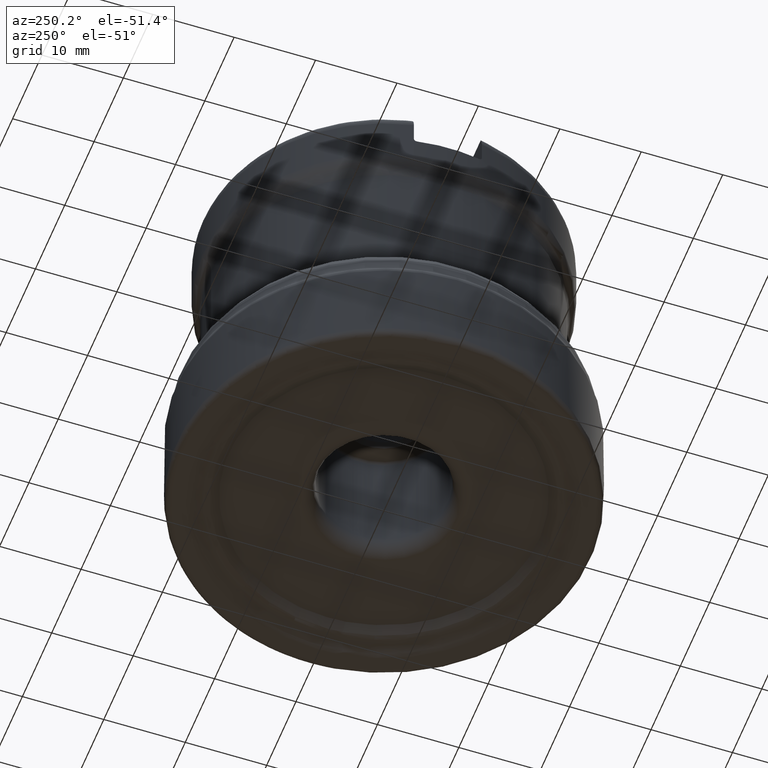
[diagram: clean part render]
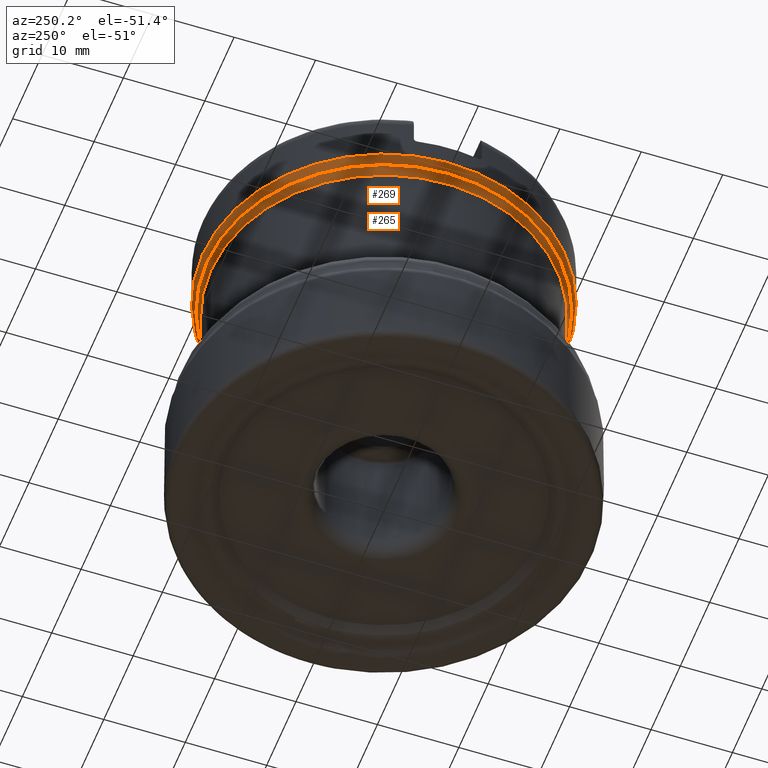
[diagram: same view with one multi-face feature highlighted, each face labeled with its STEP entity id]
A machine part, auxiliary view. The highlighted faces form ONE feature: a constant-radius fillet chain: 2 tangent blend faces with common blend radius 2 mm. The faces share edges in the B-rep.
Their STEP definitions:
[1] entity #269 (Torus):
#197=TOROIDAL_SURFACE('',#1222,20.225,2.);
#269=ADVANCED_FACE('',(#408,#409),#197,.T.);
#408=FACE_BOUND('',#528,.T.);
#409=FACE_BOUND('',#529,.T.);
#528=EDGE_LOOP('',(#756));
#529=EDGE_LOOP('',(#757));
#756=ORIENTED_EDGE('',*,*,#894,.F.);
#757=ORIENTED_EDGE('',*,*,#985,.F.);
#802=VERTEX_POINT('',#1798);
#871=VERTEX_POINT('',#2230);
#894=EDGE_CURVE('',#802,#802,#1008,.T.);
#985=EDGE_CURVE('',#871,#871,#1047,.T.);
#1008=CIRCLE('',#1131,22.225);
#1047=CIRCLE('',#1216,21.7249999999999);
#1131=AXIS2_PLACEMENT_3D('',#1797,#1242,#1243);
#1216=AXIS2_PLACEMENT_3D('',#2229,#1436,#1437);
#1222=AXIS2_PLACEMENT_3D('',#2237,#1448,#1449);
#1242=DIRECTION('',(0.,1.17145536458252E-15,1.));
#1243=DIRECTION('',(0.,-1.,1.24884479710366E-15));
#1436=DIRECTION('',(0.,-1.17145536458252E-15,-1.));
#1437=DIRECTION('',(0.,1.,-1.27758690981031E-15));
#1448=DIRECTION('',(0.,1.17145536458252E-15,1.));
#1449=DIRECTION('',(0.,-1.,1.24884479710366E-15));
#1797=CARTESIAN_POINT('',(0.,4.3305570232324E-14,36.9673241863184));
#1798=CARTESIAN_POINT('',(0.,-22.225,36.9673241863184));
#2229=CARTESIAN_POINT('',(0.,4.17558804489751E-14,35.6444485307862));
#2230=CARTESIAN_POINT('',(0.,21.725,35.6444485307861));
#2237=CARTESIAN_POINT('',(0.,4.3305570232324E-14,36.9673241863184));
[2] entity #265 (Torus):
#193=TOROIDAL_SURFACE('',#1217,23.225,2.);
#265=ADVANCED_FACE('',(#400,#401),#193,.F.);
#400=FACE_BOUND('',#520,.T.);
#401=FACE_BOUND('',#521,.T.);
#520=EDGE_LOOP('',(#748));
#521=EDGE_LOOP('',(#749));
#748=ORIENTED_EDGE('',*,*,#985,.T.);
#749=ORIENTED_EDGE('',*,*,#924,.F.);
#828=VERTEX_POINT('',#1979);
#871=VERTEX_POINT('',#2230);
#924=EDGE_CURVE('',#828,#828,#1018,.T.);
#985=EDGE_CURVE('',#871,#871,#1047,.T.);
#1018=CIRCLE('',#1146,21.225);
#1047=CIRCLE('',#1216,21.7249999999999);
#1146=AXIS2_PLACEMENT_3D('',#1978,#1280,#1281);
#1216=AXIS2_PLACEMENT_3D('',#2229,#1436,#1437);
#1217=AXIS2_PLACEMENT_3D('',#2231,#1438,#1439);
#1280=DIRECTION('',(0.,-1.17145536458252E-15,-1.));
#1281=DIRECTION('',(0.,1.,-1.30768318565978E-15));
#1436=DIRECTION('',(0.,-1.17145536458252E-15,-1.));
#1437=DIRECTION('',(0.,1.,-1.27758690981031E-15));
#1438=DIRECTION('',(0.,-1.17145536458252E-15,-1.));
#1439=DIRECTION('',(0.,1.,-1.10032014333514E-15));
#1978=CARTESIAN_POINT('',(0.,4.02061906656261E-14,34.3215728752538));
#1979=CARTESIAN_POINT('',(0.,21.225,34.3215728752538));
#2229=CARTESIAN_POINT('',(0.,4.17558804489751E-14,35.6444485307862));
#2230=CARTESIAN_POINT('',(0.,21.725,35.6444485307861));
#2231=CARTESIAN_POINT('',(0.,4.02061906656261E-14,34.3215728752538));